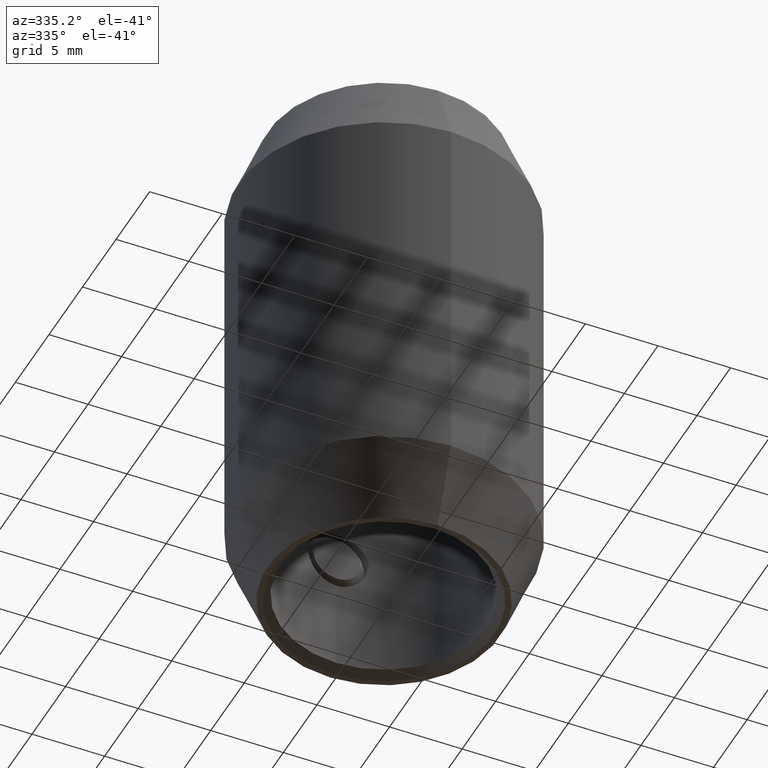
[diagram: clean part render]
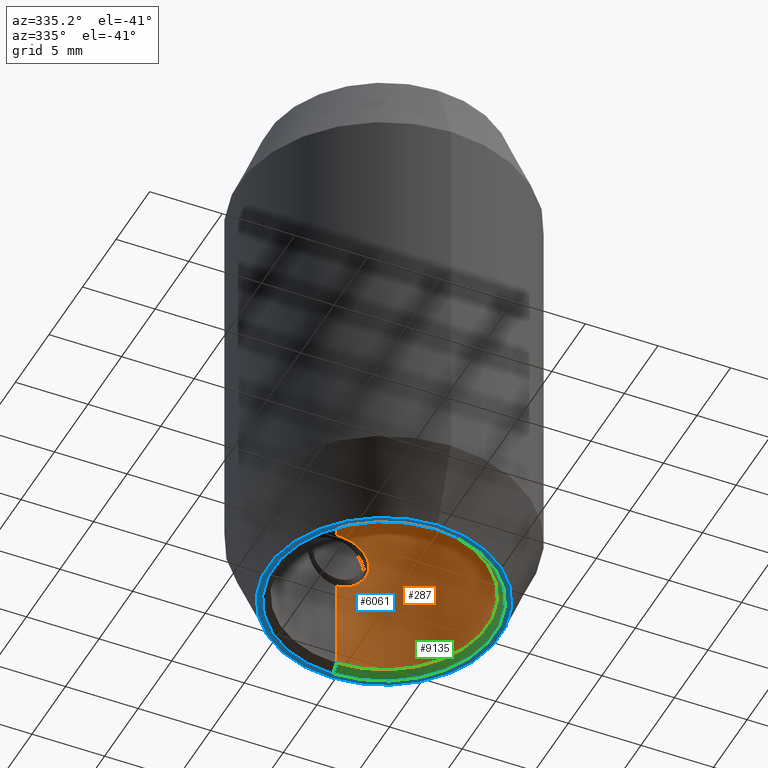
[diagram: same view with three faces highlighted in distinct colors, each labeled with its STEP entity id]
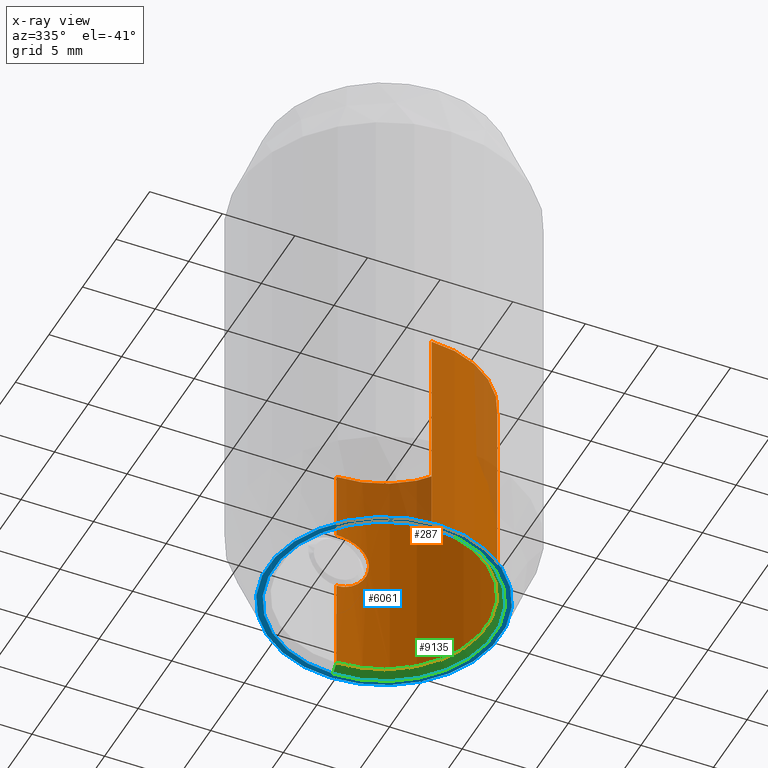
[diagram: x-ray of the same camera — body ghosted, the three highlighted faces saturated]
A machine part, auxiliary view with three faces highlighted in distinct colors.
The next image is the same camera in x-ray (body ghosted, the three faces saturated) — at least one of them is partly hidden behind the body in this view.
Their STEP definitions:

[orange] entity #287 — the highlighted cylindrical surface (partial cylindrical patch) has radius 7.1 mm, axis along (0, -0, 1).
#151 = VERTEX_POINT ( 'NONE', #1561 ) ;
#287 = ADVANCED_FACE ( 'NONE', ( #11788 ), #8463, .F. ) ;
#310 = EDGE_CURVE ( 'NONE', #408, #14325, #9660, .T. ) ;
#408 = VERTEX_POINT ( 'NONE', #5527 ) ;
#506 = VERTEX_POINT ( 'NONE', #3928 ) ;
#765 = CARTESIAN_POINT ( 'NONE',  ( 1.055323242901383907, 7.022074291837315130, -10.82069966714801801 ) ) ;
#849 = CARTESIAN_POINT ( 'NONE',  ( 1.677960758504408068, 6.901680541053727858, -7.708255520012797568 ) ) ;
#945 = CARTESIAN_POINT ( 'NONE',  ( 0.000000000000000000, -7.099999999999999645, -2.099999999999990763 ) ) ;
#958 = AXIS2_PLACEMENT_3D ( 'NONE', #9407, #9461, #2735 ) ;
#1277 = EDGE_CURVE ( 'NONE', #13940, #506, #12783, .T. ) ;
#1280 = CARTESIAN_POINT ( 'NONE',  ( 0.000000000000000000, 4.493836536903525874E-32, -2.099999999999990763 ) ) ;
#1381 = EDGE_CURVE ( 'NONE', #408, #151, #4627, .T. ) ;
#1497 = EDGE_CURVE ( 'NONE', #506, #6519, #3918, .T. ) ;
#1561 = CARTESIAN_POINT ( 'NONE',  ( 8.694837017783593169E-16, 7.099999999999999645, -11.09999999999999787 ) ) ;
#1842 = CARTESIAN_POINT ( 'NONE',  ( 9.156985276155832475E-17, 7.099999999999999645, -6.900000000000001243 ) ) ;
#1887 = CARTESIAN_POINT ( 'NONE',  ( 0.1375557234325977540, 7.099999999999997868, -11.09999999999999432 ) ) ;
#1921 = EDGE_CURVE ( 'NONE', #6519, #14325, #2662, .T. ) ;
#1998 = CARTESIAN_POINT ( 'NONE',  ( 2.100062503646428436, 6.782310630241684457, -9.136890309610393501 ) ) ;
#2141 = CARTESIAN_POINT ( 'NONE',  ( 0.000000000000000000, -7.099999999999999645, 18.00000000000000000 ) ) ;
#2662 = CIRCLE ( 'NONE', #11724, 7.099999999999999645 ) ;
#2735 = DIRECTION ( 'NONE',  ( 0.000000000000000000, -1.000000000000000000, 0.000000000000000000 ) ) ;
#2932 = CARTESIAN_POINT ( 'NONE',  ( 1.282076482774273440, 6.984239648260700761, -7.331152460905516755 ) ) ;
#2981 = CARTESIAN_POINT ( 'NONE',  ( 0.5481068254442538201, 7.080114883424740491, -11.03192086483855583 ) ) ;
#3035 = CARTESIAN_POINT ( 'NONE',  ( 0.6800285649676113264, 7.068514788919578962, -7.008396376195701549 ) ) ;
#3082 = CARTESIAN_POINT ( 'NONE',  ( 0.9340290052023217937, 7.039455233737018425, -7.114127877886975426 ) ) ;
#3123 = CARTESIAN_POINT ( 'NONE',  ( 2.086205837299407673, 6.786644351226338578, -9.276946287069563368 ) ) ;
#3434 = ORIENTED_EDGE ( 'NONE', *, *, #1921, .T. ) ;
#3918 = LINE ( 'NONE', #2141, #12432 ) ;
#3928 = CARTESIAN_POINT ( 'NONE',  ( 0.000000000000000000, -7.099999999999999645, -17.49999999999999289 ) ) ;
#3952 = AXIS2_PLACEMENT_3D ( 'NONE', #11954, #10933, #6413 ) ;
#4061 = CARTESIAN_POINT ( 'NONE',  ( 1.992254806764422348, 6.814980563361857868, -9.678247708045464748 ) ) ;
#4116 = CARTESIAN_POINT ( 'NONE',  ( 1.282266932596185516, 6.984198309087502388, -10.66866591579355550 ) ) ;
#4152 = CARTESIAN_POINT ( 'NONE',  ( 0.2769199466598932791, 7.095897631570863062, -11.08624994576554279 ) ) ;
#4256 = CARTESIAN_POINT ( 'NONE',  ( 8.694992273946207746E-16, 7.099999999999999645, 18.00000000000000000 ) ) ;
#4397 = LINE ( 'NONE', #9005, #10133 ) ;
#4627 = B_SPLINE_CURVE_WITH_KNOTS ( 'NONE', 3,
 ( #1842, #6263, #12958, #8684, #3035, #3082, #5342, #2932, #9606, #849, #13089, #10732, #11948, #8534, #10766, #1998, #3123, #10822, #4061, #9797, #14157, #10926, #4116, #765, #9702, #6448, #2981, #4152, #1887, #9656 ),
 .UNSPECIFIED., .F., .F.,
 ( 4, 2, 2, 2, 2, 2, 2, 2, 2, 2, 2, 2, 2, 2, 4 ),
 ( 8.891626141694481469E-20, 0.0004126682454879706499, 0.0008253364909759411915, 0.001238004736463911570, 0.001650672981951882166, 0.002476009472927824875, 0.002888677718415797856, 0.003301345963903771705, 0.003714014209391745553, 0.004126682454879718534, 0.004952018945855669700, 0.005364687191343643982, 0.005777355436831618264, 0.006190023682319592546, 0.006602691927807566828 ),
 .UNSPECIFIED. ) ;
#4707 = DIRECTION ( 'NONE',  ( 0.000000000000000000, -1.000000000000000000, 0.000000000000000000 ) ) ;
#4837 = EDGE_CURVE ( 'NONE', #13940, #151, #4397, .T. ) ;
#5342 = CARTESIAN_POINT ( 'NONE',  ( 1.054367326703612884, 7.022224228291168657, -7.178714257233521856 ) ) ;
#5527 = CARTESIAN_POINT ( 'NONE',  ( 9.156985276155832475E-17, 7.099999999999999645, -6.900000000000001243 ) ) ;
#5559 = DIRECTION ( 'NONE',  ( -0.000000000000000000, -2.139922160430262120E-32, 1.000000000000000000 ) ) ;
#6263 = CARTESIAN_POINT ( 'NONE',  ( 0.1395935840101249770, 7.100000000000001421, -6.900000000000003020 ) ) ;
#6413 = DIRECTION ( 'NONE',  ( 0.000000000000000000, -1.000000000000000000, 0.000000000000000000 ) ) ;
#6448 = CARTESIAN_POINT ( 'NONE',  ( 0.6791173984733047675, 7.068594988563480896, -10.99188163218018310 ) ) ;
#6519 = VERTEX_POINT ( 'NONE', #945 ) ;
#6700 = ORIENTED_EDGE ( 'NONE', *, *, #1277, .T. ) ;
#7735 = ORIENTED_EDGE ( 'NONE', *, *, #1497, .T. ) ;
#7943 = ORIENTED_EDGE ( 'NONE', *, *, #310, .F. ) ;
#8463 = CYLINDRICAL_SURFACE ( 'NONE', #3952, 7.099999999999999645 ) ;
#8534 = CARTESIAN_POINT ( 'NONE',  ( 2.086433839472593199, 6.786574712244385132, -8.724406712346556958 ) ) ;
#8684 = CARTESIAN_POINT ( 'NONE',  ( 0.5462035636502071689, 7.080245790686971574, -6.967625983167883952 ) ) ;
#9005 = CARTESIAN_POINT ( 'NONE',  ( 8.694992273946207746E-16, 7.099999999999999645, 18.00000000000000000 ) ) ;
#9080 = DIRECTION ( 'NONE',  ( -0.000000000000000000, -2.139922160430262120E-32, 1.000000000000000000 ) ) ;
#9407 = CARTESIAN_POINT ( 'NONE',  ( 0.000000000000000000, 3.744863780752956219E-31, -17.49999999999999289 ) ) ;
#9461 = DIRECTION ( 'NONE',  ( -0.000000000000000000, 2.139922160430274162E-32, -1.000000000000000000 ) ) ;
#9606 = CARTESIAN_POINT ( 'NONE',  ( 1.389233117222719027, 6.963455894559233528, -7.419313322262705235 ) ) ;
#9656 = CARTESIAN_POINT ( 'NONE',  ( 8.694837017783593169E-16, 7.099999999999999645, -11.09999999999999787 ) ) ;
#9660 = LINE ( 'NONE', #4256, #11775 ) ;
#9702 = CARTESIAN_POINT ( 'NONE',  ( 0.9323088189409569626, 7.039675831981106136, -10.88668840661378745 ) ) ;
#9797 = CARTESIAN_POINT ( 'NONE',  ( 1.833153994379063345, 6.860153322571834522, -10.06110466358000544 ) ) ;
#10116 = CARTESIAN_POINT ( 'NONE',  ( 8.694992273946207746E-16, 7.099999999999999645, -17.49999999999999289 ) ) ;
#10133 = VECTOR ( 'NONE', #5559, 1000.000000000000000 ) ;
#10378 = EDGE_LOOP ( 'NONE', ( #11168, #6700, #7735, #3434, #7943, #12882 ) ) ;
#10732 = CARTESIAN_POINT ( 'NONE',  ( 1.991472193640449806, 6.815204645832428909, -8.319769066086056597 ) ) ;
#10766 = CARTESIAN_POINT ( 'NONE',  ( 2.099937061584784548, 6.782349470625479881, -8.861198654654961260 ) ) ;
#10822 = CARTESIAN_POINT ( 'NONE',  ( 2.032192505950635830, 6.803013300323065060, -9.546943927895545912 ) ) ;
#10926 = CARTESIAN_POINT ( 'NONE',  ( 1.387475279684312612, 6.963816921382944614, -10.58231100551403436 ) ) ;
#10933 = DIRECTION ( 'NONE',  ( -0.000000000000000000, -2.139922160430262120E-32, 1.000000000000000000 ) ) ;
#11168 = ORIENTED_EDGE ( 'NONE', *, *, #4837, .F. ) ;
#11724 = AXIS2_PLACEMENT_3D ( 'NONE', #1280, #9080, #4707 ) ;
#11775 = VECTOR ( 'NONE', #12044, 1000.000000000000000 ) ;
#11788 = FACE_OUTER_BOUND ( 'NONE', #10378, .T. ) ;
#11948 = CARTESIAN_POINT ( 'NONE',  ( 2.032212786353642997, 6.803007693833077241, -8.452945141985974686 ) ) ;
#11954 = CARTESIAN_POINT ( 'NONE',  ( 0.000000000000000000, -3.851859888774471706E-31, 18.00000000000000000 ) ) ;
#12044 = DIRECTION ( 'NONE',  ( -0.000000000000000000, -2.139922160430262120E-32, 1.000000000000000000 ) ) ;
#12432 = VECTOR ( 'NONE', #13146, 1000.000000000000000 ) ;
#12783 = CIRCLE ( 'NONE', #958, 7.099999999999999645 ) ;
#12882 = ORIENTED_EDGE ( 'NONE', *, *, #1381, .T. ) ;
#12958 = CARTESIAN_POINT ( 'NONE',  ( 0.2767032512201565986, 7.095889944203542576, -6.913779065390557754 ) ) ;
#13089 = CARTESIAN_POINT ( 'NONE',  ( 1.834038904729702990, 6.859898304378432066, -7.941225339402155470 ) ) ;
#13146 = DIRECTION ( 'NONE',  ( -0.000000000000000000, -2.139922160430262120E-32, 1.000000000000000000 ) ) ;
#13496 = CARTESIAN_POINT ( 'NONE',  ( 8.694992273946207746E-16, 7.099999999999999645, -2.099999999999990763 ) ) ;
#13940 = VERTEX_POINT ( 'NONE', #10116 ) ;
#14157 = CARTESIAN_POINT ( 'NONE',  ( 1.678396397419331443, 6.901617245126528744, -10.29157601896003094 ) ) ;
#14325 = VERTEX_POINT ( 'NONE', #13496 ) ;

[blue] entity #6061 — the highlighted planar face has unit normal (0, -0, 1).
#184 = EDGE_LOOP ( 'NONE', ( #9952, #7886 ) ) ;
#199 = DIRECTION ( 'NONE',  ( 0.000000000000000000, -1.000000000000000000, 0.000000000000000000 ) ) ;
#629 = ORIENTED_EDGE ( 'NONE', *, *, #13865, .T. ) ;
#734 = CARTESIAN_POINT ( 'NONE',  ( 9.307315673519895320E-16, -7.600000000000009415, -18.00000000000000000 ) ) ;
#1153 = EDGE_CURVE ( 'NONE', #11382, #13851, #13623, .T. ) ;
#1817 = AXIS2_PLACEMENT_3D ( 'NONE', #2382, #13659, #10222 ) ;
#2382 = CARTESIAN_POINT ( 'NONE',  ( 0.000000000000000000, 3.851859888774471706E-31, -18.00000000000000000 ) ) ;
#2423 = CARTESIAN_POINT ( 'NONE',  ( 0.000000000000000000, 3.851859888774471706E-31, -18.00000000000000000 ) ) ;
#2441 = VERTEX_POINT ( 'NONE', #10582 ) ;
#2477 = CARTESIAN_POINT ( 'NONE',  ( 0.000000000000000000, 3.851859888774471706E-31, -18.00000000000000000 ) ) ;
#2832 = DIRECTION ( 'NONE',  ( -0.000000000000000000, -2.139922160430262120E-32, 1.000000000000000000 ) ) ;
#2882 = PLANE ( 'NONE',  #12280 ) ;
#4048 = DIRECTION ( 'NONE',  ( 0.000000000000000000, -1.000000000000000000, -2.139922160430262120E-32 ) ) ;
#4754 = AXIS2_PLACEMENT_3D ( 'NONE', #2423, #6979, #199 ) ;
#4830 = DIRECTION ( 'NONE',  ( 0.000000000000000000, -1.000000000000000000, 0.000000000000000000 ) ) ;
#5080 = DIRECTION ( 'NONE',  ( 0.000000000000000000, -2.139922160430262120E-32, 1.000000000000000000 ) ) ;
#5369 = AXIS2_PLACEMENT_3D ( 'NONE', #2477, #2832, #13960 ) ;
#5777 = DIRECTION ( 'NONE',  ( -0.000000000000000000, -2.139922160430262120E-32, 1.000000000000000000 ) ) ;
#5792 = EDGE_CURVE ( 'NONE', #2441, #14456, #7722, .T. ) ;
#6061 = ADVANCED_FACE ( 'NONE', ( #7066, #11062 ), #2882, .F. ) ;
#6731 = EDGE_CURVE ( 'NONE', #13851, #11382, #7404, .T. ) ;
#6979 = DIRECTION ( 'NONE',  ( -0.000000000000000000, -2.139922160430262120E-32, 1.000000000000000000 ) ) ;
#7066 = FACE_BOUND ( 'NONE', #10204, .T. ) ;
#7404 = CIRCLE ( 'NONE', #5369, 8.000000000000000000 ) ;
#7519 = ORIENTED_EDGE ( 'NONE', *, *, #5792, .T. ) ;
#7722 = CIRCLE ( 'NONE', #1817, 7.600000000000009415 ) ;
#7886 = ORIENTED_EDGE ( 'NONE', *, *, #6731, .F. ) ;
#8588 = CIRCLE ( 'NONE', #4754, 7.600000000000009415 ) ;
#9589 = CARTESIAN_POINT ( 'NONE',  ( 0.000000000000000000, 7.099999999999999645, -18.00000000000000000 ) ) ;
#9952 = ORIENTED_EDGE ( 'NONE', *, *, #1153, .F. ) ;
#10204 = EDGE_LOOP ( 'NONE', ( #7519, #629 ) ) ;
#10222 = DIRECTION ( 'NONE',  ( 0.000000000000000000, -1.000000000000000000, 0.000000000000000000 ) ) ;
#10582 = CARTESIAN_POINT ( 'NONE',  ( 0.000000000000000000, 7.600000000000009415, -18.00000000000000000 ) ) ;
#11062 = FACE_OUTER_BOUND ( 'NONE', #184, .T. ) ;
#11382 = VERTEX_POINT ( 'NONE', #14246 ) ;
#11403 = CARTESIAN_POINT ( 'NONE',  ( 1.102182119232617911E-15, 8.000000000000000000, -18.00000000000000000 ) ) ;
#12280 = AXIS2_PLACEMENT_3D ( 'NONE', #9589, #5080, #4048 ) ;
#12937 = AXIS2_PLACEMENT_3D ( 'NONE', #13516, #5777, #4830 ) ;
#13516 = CARTESIAN_POINT ( 'NONE',  ( 0.000000000000000000, 3.851859888774471706E-31, -18.00000000000000000 ) ) ;
#13623 = CIRCLE ( 'NONE', #12937, 8.000000000000000000 ) ;
#13659 = DIRECTION ( 'NONE',  ( -0.000000000000000000, -2.139922160430262120E-32, 1.000000000000000000 ) ) ;
#13851 = VERTEX_POINT ( 'NONE', #11403 ) ;
#13865 = EDGE_CURVE ( 'NONE', #14456, #2441, #8588, .T. ) ;
#13960 = DIRECTION ( 'NONE',  ( 0.000000000000000000, -1.000000000000000000, 0.000000000000000000 ) ) ;
#14246 = CARTESIAN_POINT ( 'NONE',  ( 0.000000000000000000, -8.000000000000000000, -18.00000000000000000 ) ) ;
#14456 = VERTEX_POINT ( 'NONE', #734 ) ;

[green] entity #9135 — the highlighted conical surface has half-angle 45 deg.
#9 = VECTOR ( 'NONE', #9000, 1000.000000000000114 ) ;
#199 = DIRECTION ( 'NONE',  ( 0.000000000000000000, -1.000000000000000000, 0.000000000000000000 ) ) ;
#506 = VERTEX_POINT ( 'NONE', #3928 ) ;
#734 = CARTESIAN_POINT ( 'NONE',  ( 9.307315673519895320E-16, -7.600000000000009415, -18.00000000000000000 ) ) ;
#958 = AXIS2_PLACEMENT_3D ( 'NONE', #9407, #9461, #2735 ) ;
#1277 = EDGE_CURVE ( 'NONE', #13940, #506, #12783, .T. ) ;
#1558 = DIRECTION ( 'NONE',  ( 8.659560562354957510E-17, -0.7071067811865493491, -0.7071067811865456854 ) ) ;
#2423 = CARTESIAN_POINT ( 'NONE',  ( 0.000000000000000000, 3.851859888774471706E-31, -18.00000000000000000 ) ) ;
#2441 = VERTEX_POINT ( 'NONE', #10582 ) ;
#2735 = DIRECTION ( 'NONE',  ( 0.000000000000000000, -1.000000000000000000, 0.000000000000000000 ) ) ;
#2745 = DIRECTION ( 'NONE',  ( 0.000000000000000000, 1.000000000000000000, 0.000000000000000000 ) ) ;
#3669 = EDGE_CURVE ( 'NONE', #13940, #2441, #11732, .T. ) ;
#3928 = CARTESIAN_POINT ( 'NONE',  ( 0.000000000000000000, -7.099999999999999645, -17.49999999999999289 ) ) ;
#4020 = CARTESIAN_POINT ( 'NONE',  ( 0.000000000000000000, 3.851859888774471706E-31, -18.00000000000000000 ) ) ;
#4339 = ORIENTED_EDGE ( 'NONE', *, *, #13865, .F. ) ;
#4754 = AXIS2_PLACEMENT_3D ( 'NONE', #2423, #6979, #199 ) ;
#5157 = LINE ( 'NONE', #12773, #13642 ) ;
#5666 = CARTESIAN_POINT ( 'NONE',  ( 0.000000000000000000, 7.600000000000009415, -18.00000000000000000 ) ) ;
#6265 = EDGE_CURVE ( 'NONE', #506, #14456, #5157, .T. ) ;
#6979 = DIRECTION ( 'NONE',  ( -0.000000000000000000, -2.139922160430262120E-32, 1.000000000000000000 ) ) ;
#8556 = ORIENTED_EDGE ( 'NONE', *, *, #3669, .T. ) ;
#8588 = CIRCLE ( 'NONE', #4754, 7.600000000000009415 ) ;
#9000 = DIRECTION ( 'NONE',  ( 0.000000000000000000, 0.7071067811865493491, -0.7071067811865456854 ) ) ;
#9135 = ADVANCED_FACE ( 'NONE', ( #14111 ), #13405, .F. ) ;
#9407 = CARTESIAN_POINT ( 'NONE',  ( 0.000000000000000000, 3.744863780752956219E-31, -17.49999999999999289 ) ) ;
#9461 = DIRECTION ( 'NONE',  ( -0.000000000000000000, 2.139922160430274162E-32, -1.000000000000000000 ) ) ;
#10116 = CARTESIAN_POINT ( 'NONE',  ( 8.694992273946207746E-16, 7.099999999999999645, -17.49999999999999289 ) ) ;
#10582 = CARTESIAN_POINT ( 'NONE',  ( 0.000000000000000000, 7.600000000000009415, -18.00000000000000000 ) ) ;
#11283 = ORIENTED_EDGE ( 'NONE', *, *, #6265, .F. ) ;
#11732 = LINE ( 'NONE', #5666, #9 ) ;
#12268 = ORIENTED_EDGE ( 'NONE', *, *, #1277, .F. ) ;
#12287 = EDGE_LOOP ( 'NONE', ( #11283, #12268, #8556, #4339 ) ) ;
#12773 = CARTESIAN_POINT ( 'NONE',  ( 9.307315673519895320E-16, -7.600000000000009415, -18.00000000000000000 ) ) ;
#12783 = CIRCLE ( 'NONE', #958, 7.099999999999999645 ) ;
#12909 = DIRECTION ( 'NONE',  ( -0.000000000000000000, 2.139922160430274162E-32, -1.000000000000000000 ) ) ;
#13016 = AXIS2_PLACEMENT_3D ( 'NONE', #4020, #12909, #2745 ) ;
#13405 = CONICAL_SURFACE ( 'NONE', #13016, 7.600000000000009415, 0.7853981633974509435 ) ;
#13642 = VECTOR ( 'NONE', #1558, 1000.000000000000114 ) ;
#13865 = EDGE_CURVE ( 'NONE', #14456, #2441, #8588, .T. ) ;
#13940 = VERTEX_POINT ( 'NONE', #10116 ) ;
#14111 = FACE_OUTER_BOUND ( 'NONE', #12287, .T. ) ;
#14456 = VERTEX_POINT ( 'NONE', #734 ) ;